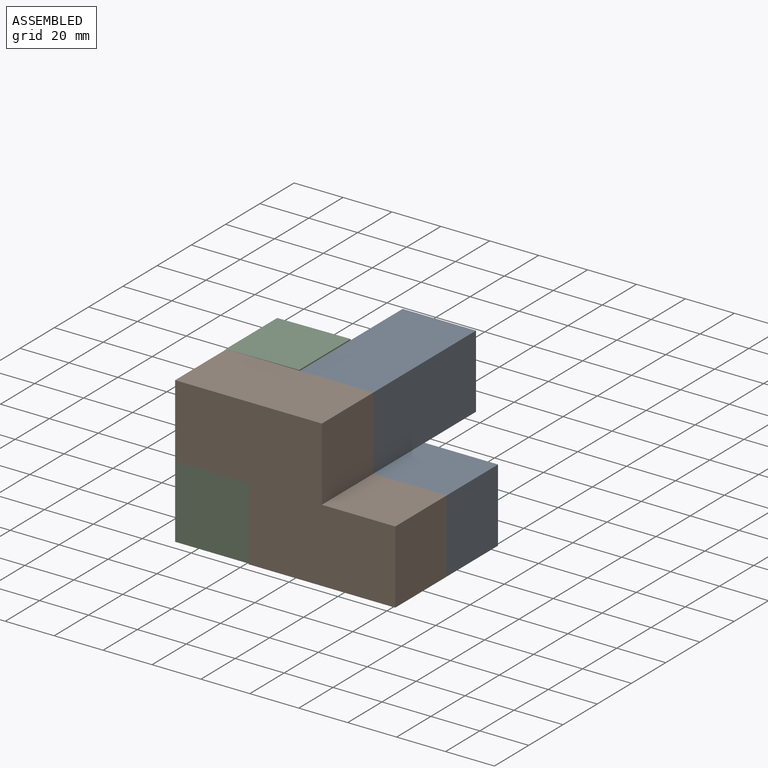
[diagram: assembled view]
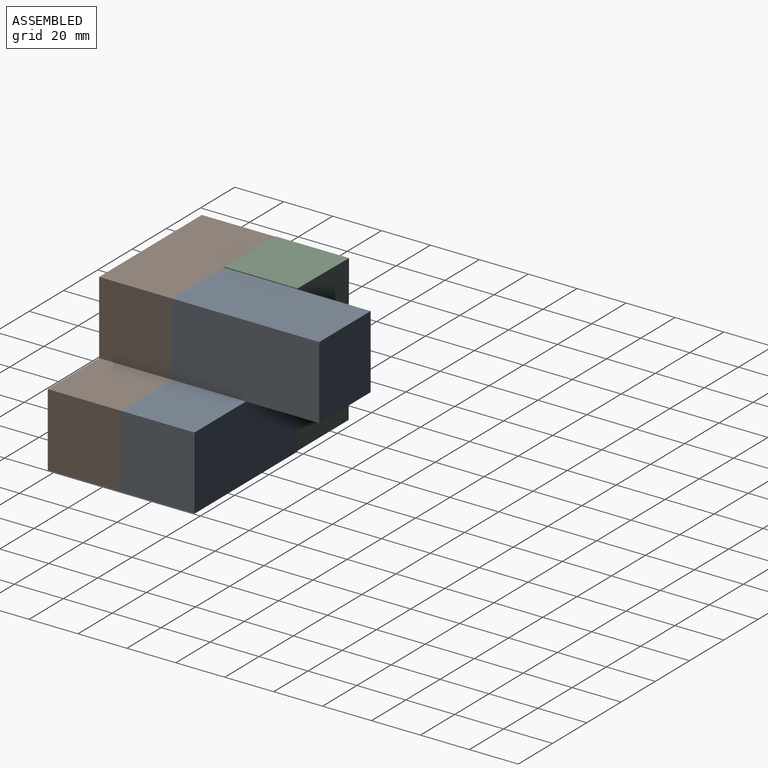
[diagram: assembled view, second angle]
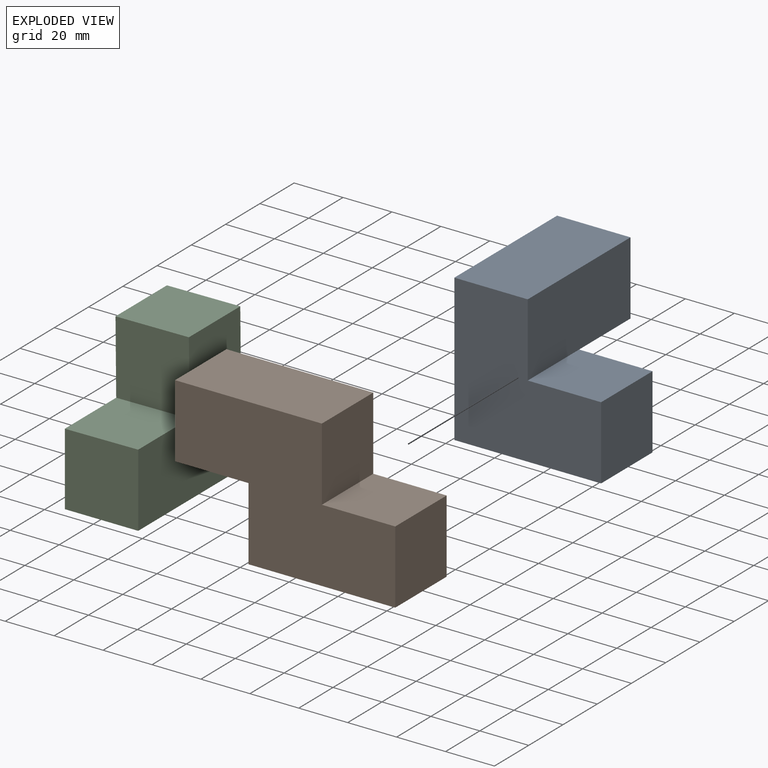
[diagram: exploded view]
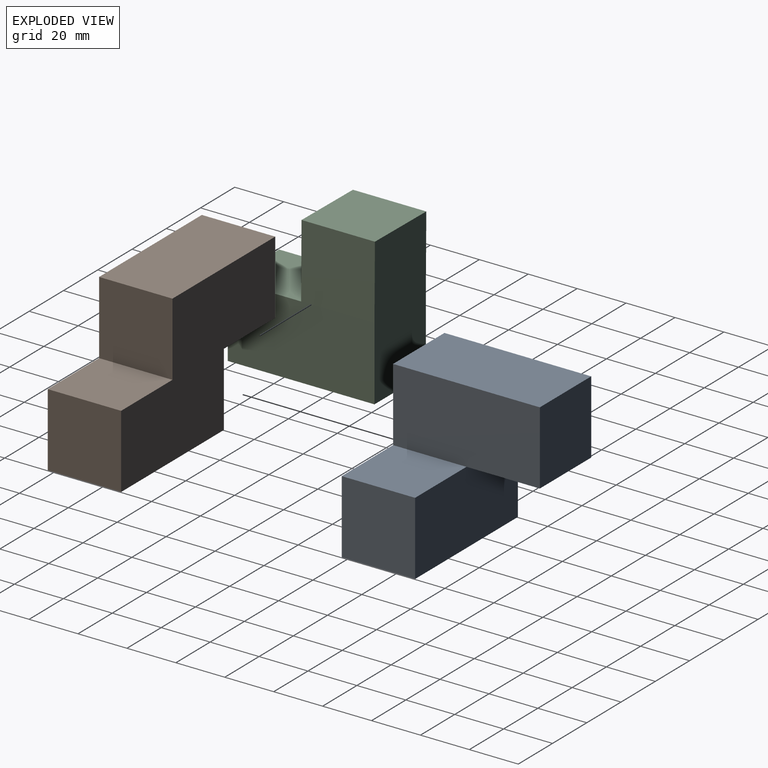
[diagram: exploded view, second angle]
ASSEMBLY  parts=3 mates=2
PART A: 10 faces, bbox 60x60x60 mm
  f0: plane 30x30mm, normal (0,0,-1), area 900mm2, adj f2,f3,f5,f6
  f1: plane 60x30mm, normal (0,0,1), area 1800mm2, adj f2,f3,f4,f5
  f2: plane 60x60mm, normal (-1,0,0), area 2700mm2, adj f0,f1,f4,f5,f6,f7
  f3: plane 60x30mm, normal (1,0,0), area 1800mm2, adj f0,f1,f4,f5,f8
  f4: plane 60x60mm, normal (0,-1,0), area 2700mm2, adj f1,f2,f3,f7,f8,f9
  f5: plane 30x30mm, normal (0,1,0), area 900mm2, adj f0,f1,f2,f3
  f6: plane 60x30mm, normal (0,1,0), area 1800mm2, adj f0,f2,f7,f8,f9
  f7: plane 60x30mm, normal (0,0,-1), area 1800mm2, adj f2,f4,f6,f9
  f8: plane 30x30mm, normal (0,0,1), area 900mm2, adj f3,f4,f6,f9
  f9: plane 30x30mm, normal (1,0,0), area 900mm2, adj f4,f6,f7,f8
PART B: 10 faces, bbox 30x90x60 mm
  f0: plane 30x30mm, normal (0,1,0), area 900mm2, adj f2,f3,f4,f8
  f1: plane 30x30mm, normal (0,0,-1), area 900mm2, adj f3,f4,f5,f6
  f2: plane 60x30mm, normal (0,0,1), area 1800mm2, adj f0,f3,f4,f5
  f3: plane 90x60mm, normal (-1,0,0), area 3600mm2, adj f0,f1,f2,f5,f6,f7,f8,f9
  f4: plane 90x60mm, normal (1,0,0), area 3600mm2, adj f0,f1,f2,f5,f6,f7,f8,f9
  f5: plane 30x30mm, normal (0,-1,0), area 900mm2, adj f1,f2,f3,f4
  f6: plane 30x30mm, normal (0,-1,0), area 900mm2, adj f1,f3,f4,f7
  f7: plane 60x30mm, normal (0,0,-1), area 1800mm2, adj f3,f4,f6,f9
  f8: plane 30x30mm, normal (0,0,1), area 900mm2, adj f0,f3,f4,f9
  f9: plane 30x30mm, normal (0,1,0), area 900mm2, adj f3,f4,f7,f8
PART C: 10 faces, bbox 30.3x60x60 mm
  f0: plane 30x30mm, normal (-0.01,0,1), area 900mm2, adj f1,f3,f4,f7
  f1: plane 60x29.72mm, normal (-1,0,0), area 1783.4mm2, adj f0,f2,f4,f5,f6
  f2: plane 60x30mm, normal (0,0,-1), area 1799.9mm2, adj f1,f3,f4,f5
  f3: plane 60x30mm, normal (1,0,0), area 1800mm2, adj f0,f2,f4,f5,f8
  f4: plane 30x30mm, normal (0,-1,0), area 895.8mm2, adj f0,f1,f2,f3
  f5: plane 60x30.28mm, normal (0,1,0), area 1795.8mm2, adj f1,f2,f3,f6,f8,f9
  f6: plane 30x30mm, normal (-1,0,-0.01), area 900mm2, adj f1,f5,f7,f9
  f7: plane 30.28x30.28mm, normal (0,-1,0), area 900mm2, adj f0,f6,f8,f9
  f8: plane 30x30mm, normal (1,0,0.01), area 900mm2, adj f3,f5,f7,f9
  f9: plane 30x30mm, normal (-0.01,0,1), area 900mm2, adj f5,f6,f7,f8
PLACE A rot(axis=(0,0,1),0deg) t=(33.64,30,40.06)mm
PLACE B rot(axis=(0,0,-1),90deg) t=(13.43,-62.15,27.66)mm
PLACE C at identity
MATE fastened B.f5 <-> C.f1  axis (-1,0,0) through (-46.57,-60,27.66)mm
MATE fastened A.f4 <-> B.f3  axis (0,-1,0) through (43.43,-30,27.66)mm
